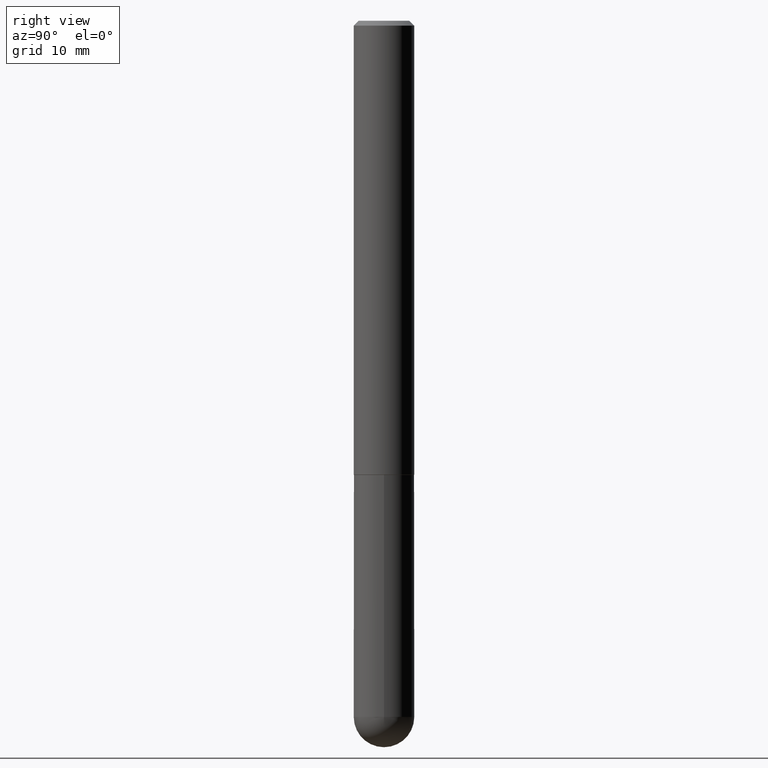
[diagram: clean part render]
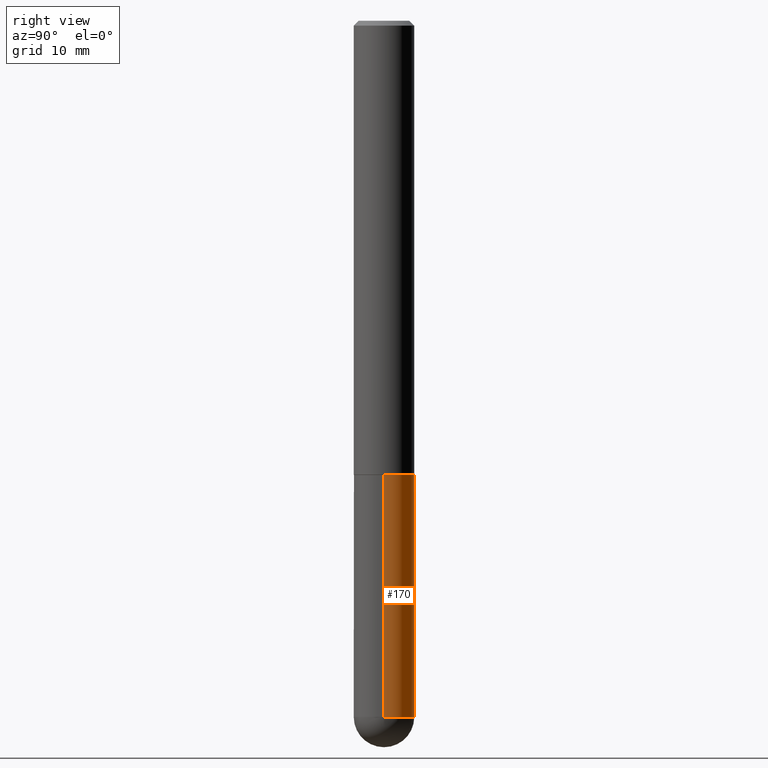
[diagram: same view with one face highlighted and labeled with its STEP entity id]
A machine part, right view. The second image highlights one B-rep face of the part: STEP entity #170.
In plain terms, the highlighted cylindrical surface (edge-blend (fillet) strip) has radius 3.175 mm, axis along (-0, 0, 1).
Its self-contained STEP definition (entity closure, byte-faithful):
#2 = DIRECTION ( 'NONE',  ( -2.445468806185136597E-29, 3.491481338843145583E-15, 1.000000000000000000 ) ) ;
#3 = VERTEX_POINT ( 'NONE', #177 ) ;
#13 = CARTESIAN_POINT ( 'NONE',  ( 0.1250000000000000000, -8.728703347107833388E-16, 6.095220969744919741E-30 ) ) ;
#19 = DIRECTION ( 'NONE',  ( 1.000000000000000000, -6.982962677686262766E-15, 0.000000000000000000 ) ) ;
#24 = EDGE_CURVE ( 'NONE', #68, #3, #369, .T. ) ;
#37 = ORIENTED_EDGE ( 'NONE', *, *, #382, .F. ) ;
#54 = ORIENTED_EDGE ( 'NONE', *, *, #24, .F. ) ;
#65 = VECTOR ( 'NONE', #346, 39.37007874015748143 ) ;
#68 = VERTEX_POINT ( 'NONE', #122 ) ;
#80 = AXIS2_PLACEMENT_3D ( 'NONE', #107, #275, #323 ) ;
#81 = CIRCLE ( 'NONE', #343, 0.1250000000000000000 ) ;
#86 = ORIENTED_EDGE ( 'NONE', *, *, #319, .T. ) ;
#97 = CARTESIAN_POINT ( 'NONE',  ( 8.728703347108524628E-16, 0.1249999999999898276, -2.875000000000000888 ) ) ;
#105 = ORIENTED_EDGE ( 'NONE', *, *, #242, .T. ) ;
#107 = CARTESIAN_POINT ( 'NONE',  ( 4.585254011597131119E-29, -6.546527510330898707E-15, -1.875000000000000000 ) ) ;
#122 = CARTESIAN_POINT ( 'NONE',  ( 0.1250000000000000000, -7.419397845041682046E-15, -1.875000000000000000 ) ) ;
#133 = CARTESIAN_POINT ( 'NONE',  ( -0.1250000000000000000, 8.881784197001252323E-16, -6.148668862818632227E-30 ) ) ;
#155 = CIRCLE ( 'NONE', #337, 0.1250000000000000000 ) ;
#162 = DIRECTION ( 'NONE',  ( -2.445468806185136597E-29, 3.491481338843145583E-15, 1.000000000000000000 ) ) ;
#170 = ADVANCED_FACE ( 'NONE', ( #204 ), #326, .T. ) ;
#172 = DIRECTION ( 'NONE',  ( -2.445468806185136597E-29, 3.491481338843145583E-15, 1.000000000000000000 ) ) ;
#177 = CARTESIAN_POINT ( 'NONE',  ( -0.1250000000000000000, -7.404089760052348041E-15, -1.875000000000000000 ) ) ;
#204 = FACE_OUTER_BOUND ( 'NONE', #231, .T. ) ;
#223 = DIRECTION ( 'NONE',  ( -2.445468806185136877E-29, 3.491481338843145188E-15, 1.000000000000000000 ) ) ;
#226 = CARTESIAN_POINT ( 'NONE',  ( -0.1250000000000000000, -7.404089760052348041E-15, -2.875000000000000444 ) ) ;
#231 = EDGE_LOOP ( 'NONE', ( #105, #86, #54, #37, #325 ) ) ;
#232 = DIRECTION ( 'NONE',  ( 1.000000000000000000, -6.982962677686262766E-15, 0.000000000000000000 ) ) ;
#236 = VECTOR ( 'NONE', #223, 39.37007874015748143 ) ;
#242 = EDGE_CURVE ( 'NONE', #305, #327, #81, .T. ) ;
#267 = VERTEX_POINT ( 'NONE', #313 ) ;
#270 = DIRECTION ( 'NONE',  ( 1.000000000000000000, -6.982962677686266711E-15, 4.876176775795935793E-29 ) ) ;
#273 = EDGE_CURVE ( 'NONE', #267, #305, #155, .T. ) ;
#275 = DIRECTION ( 'NONE',  ( -2.445468806185136597E-29, 3.491481338843145583E-15, 1.000000000000000000 ) ) ;
#290 = LINE ( 'NONE', #133, #65 ) ;
#305 = VERTEX_POINT ( 'NONE', #97 ) ;
#313 = CARTESIAN_POINT ( 'NONE',  ( 0.1250000000000000000, -9.165138514463255034E-15, -2.875000000000000444 ) ) ;
#319 = EDGE_CURVE ( 'NONE', #327, #3, #290, .T. ) ;
#323 = DIRECTION ( 'NONE',  ( 1.000000000000000000, -6.982962677686262766E-15, 0.000000000000000000 ) ) ;
#325 = ORIENTED_EDGE ( 'NONE', *, *, #273, .T. ) ;
#326 = CYLINDRICAL_SURFACE ( 'NONE', #357, 0.1250000000000000000 ) ;
#327 = VERTEX_POINT ( 'NONE', #226 ) ;
#335 = LINE ( 'NONE', #13, #236 ) ;
#337 = AXIS2_PLACEMENT_3D ( 'NONE', #383, #172, #232 ) ;
#343 = AXIS2_PLACEMENT_3D ( 'NONE', #347, #162, #19 ) ;
#346 = DIRECTION ( 'NONE',  ( -2.445468806185136877E-29, 3.491481338843145188E-15, 1.000000000000000000 ) ) ;
#347 = CARTESIAN_POINT ( 'NONE',  ( 7.030722817782268837E-29, -1.003800884917404626E-14, -2.875000000000000444 ) ) ;
#354 = CARTESIAN_POINT ( 'NONE',  ( 0.000000000000000000, 0.000000000000000000, 0.000000000000000000 ) ) ;
#357 = AXIS2_PLACEMENT_3D ( 'NONE', #354, #2, #270 ) ;
#369 = CIRCLE ( 'NONE', #80, 0.1250000000000000000 ) ;
#382 = EDGE_CURVE ( 'NONE', #267, #68, #335, .T. ) ;
#383 = CARTESIAN_POINT ( 'NONE',  ( 7.030722817782268837E-29, -1.003800884917404626E-14, -2.875000000000000444 ) ) ;